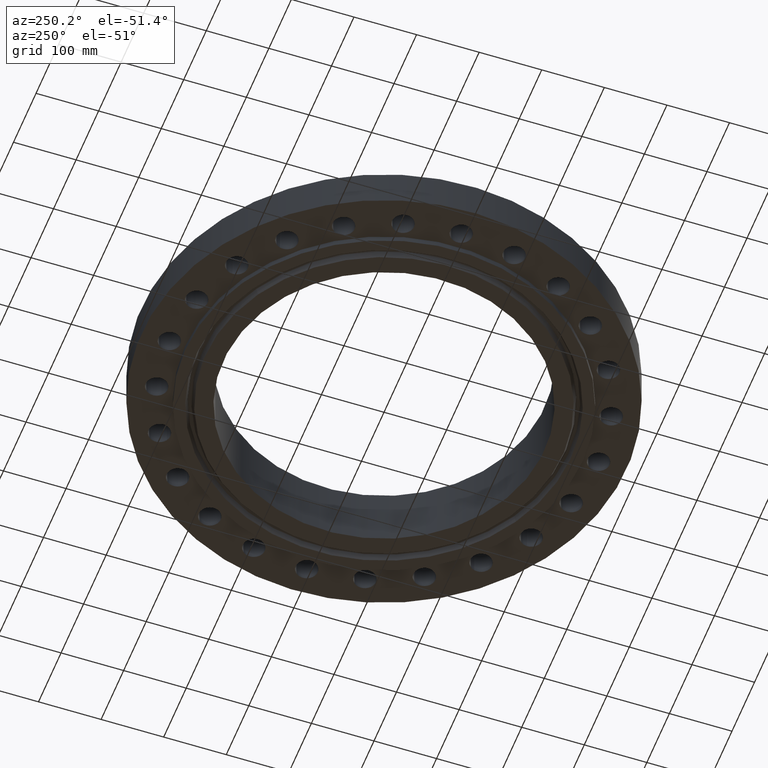
[diagram: clean part render]
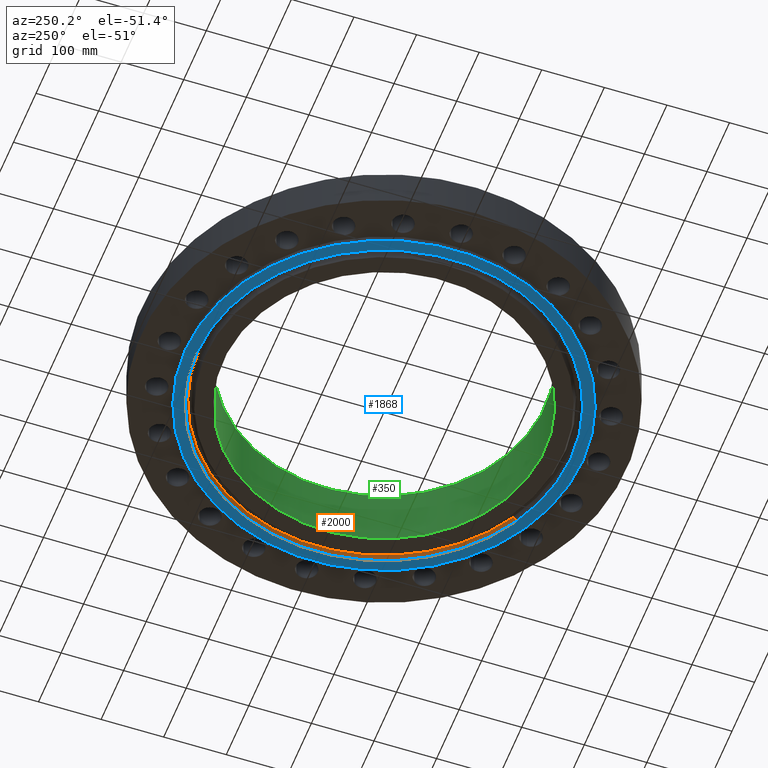
[diagram: same view with three faces highlighted in distinct colors, each labeled with its STEP entity id]
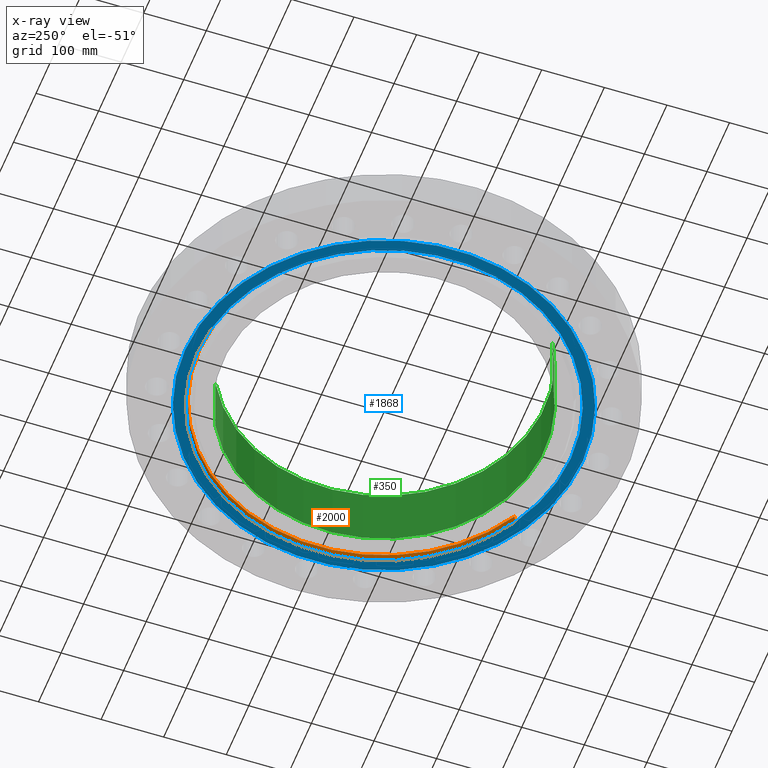
[diagram: x-ray of the same camera — body ghosted, the three highlighted faces saturated]
A machine part, auxiliary view with three faces highlighted in distinct colors.
The next image is the same camera in x-ray (body ghosted, the three faces saturated) — at least one of them is partly hidden behind the body in this view.
Their STEP definitions:

[orange] entity #2000 — the highlighted conical surface has half-angle 23 deg.
#1861=AXIS2_PLACEMENT_3D('Circle Axis2P3D',#1859,#1860,$) ;
#1935=AXIS2_PLACEMENT_3D('Cone Axis2P3D',#1932,#1933,#1934) ;
#1956=AXIS2_PLACEMENT_3D('Circle Axis2P3D',#1954,#1955,$) ;
#1854=CARTESIAN_POINT('Vertex',(5.6407530883,-10.3253292693,-0.375000000001)) ;
#1856=CARTESIAN_POINT('Vertex',(-5.6407530883,10.3253292693,-0.375000000001)) ;
#1859=CARTESIAN_POINT('Axis2P3D Location',(-2.79741234551E-016,-2.23792987641E-015,-0.375000000001)) ;
#1901=CARTESIAN_POINT('Vertex',(-5.57218835637,10.1998223694,-0.0380793044696)) ;
#1903=CARTESIAN_POINT('Vertex',(5.57218835637,-10.1998223694,-0.0380793044696)) ;
#1932=CARTESIAN_POINT('Axis2P3D Location',(0.,0.,-0.0380793044696)) ;
#1937=CARTESIAN_POINT('Line Origine',(-5.60647072234,10.2625758194,-0.206539652236)) ;
#1942=CARTESIAN_POINT('Line Origine',(5.60647072234,-10.2625758194,-0.206539652236)) ;
#1954=CARTESIAN_POINT('Axis2P3D Location',(0.,0.,-0.0380793044696)) ;
#1860=DIRECTION('Axis2P3D Direction',(0.,0.,-0.0393700787402)) ;
#1933=DIRECTION('Axis2P3D Direction',(-0.,-0.,-0.0393700787402)) ;
#1934=DIRECTION('Axis2P3D XDirection',(-0.0188750212049,0.0345504945626,0.)) ;
#1938=DIRECTION('Vector Direction',(-0.00737505833565,0.0134999537303,-0.0362403485611)) ;
#1943=DIRECTION('Vector Direction',(0.00737505833565,-0.0134999537303,-0.0362403485611)) ;
#1955=DIRECTION('Axis2P3D Direction',(0.,0.,0.0393700787402)) ;
#1939=VECTOR('Line Direction',#1938,0.0393700787402) ;
#1944=VECTOR('Line Direction',#1943,0.0393700787402) ;
#1995=ORIENTED_EDGE('',*,*,#1863,.T.) ;
#1996=ORIENTED_EDGE('',*,*,#1946,.T.) ;
#1997=ORIENTED_EDGE('',*,*,#1958,.T.) ;
#1998=ORIENTED_EDGE('',*,*,#1941,.F.) ;
#2000=ADVANCED_FACE('PartBody',(#1999),#1936,.F.) ;
#1862=CIRCLE('generated circle',#1861,11.76565) ;
#1957=CIRCLE('generated circle',#1956,11.6226356497) ;
#1936=CONICAL_SURFACE('Cone',#1935,11.6226356497,0.401425727959) ;
#1863=EDGE_CURVE('',#1857,#1855,#1862,.T.) ;
#1941=EDGE_CURVE('',#1857,#1902,#1940,.F.) ;
#1946=EDGE_CURVE('',#1855,#1904,#1945,.F.) ;
#1958=EDGE_CURVE('',#1904,#1902,#1957,.T.) ;
#1994=EDGE_LOOP('',(#1995,#1996,#1997,#1998)) ;
#1999=FACE_OUTER_BOUND('',#1994,.T.) ;
#1940=LINE('Line',#1937,#1939) ;
#1945=LINE('Line',#1942,#1944) ;
#1855=VERTEX_POINT('',#1854) ;
#1857=VERTEX_POINT('',#1856) ;
#1902=VERTEX_POINT('',#1901) ;
#1904=VERTEX_POINT('',#1903) ;

[blue] entity #1868 — the highlighted planar face has unit normal (0, 0, -1).
#370=AXIS2_PLACEMENT_3D('Circle Axis2P3D',#368,#369,$) ;
#405=AXIS2_PLACEMENT_3D('Circle Axis2P3D',#403,#404,$) ;
#1844=AXIS2_PLACEMENT_3D('Plane Axis2P3D',#1841,#1842,#1843) ;
#1852=AXIS2_PLACEMENT_3D('Circle Axis2P3D',#1850,#1851,$) ;
#1861=AXIS2_PLACEMENT_3D('Circle Axis2P3D',#1859,#1860,$) ;
#368=CARTESIAN_POINT('Axis2P3D Location',(0.,0.,-0.375000000001)) ;
#372=CARTESIAN_POINT('Vertex',(-5.99281923258,-10.9697820237,-0.375000000001)) ;
#374=CARTESIAN_POINT('Vertex',(5.99281923258,10.9697820237,-0.375000000001)) ;
#403=CARTESIAN_POINT('Axis2P3D Location',(0.,0.,-0.375000000001)) ;
#1841=CARTESIAN_POINT('Axis2P3D Location',(0.,10.1,-0.375000000001)) ;
#1850=CARTESIAN_POINT('Axis2P3D Location',(-1.39870617276E-015,-2.23792987641E-015,-0.375000000001)) ;
#1854=CARTESIAN_POINT('Vertex',(5.6407530883,-10.3253292693,-0.375000000001)) ;
#1856=CARTESIAN_POINT('Vertex',(-5.6407530883,10.3253292693,-0.375000000001)) ;
#1859=CARTESIAN_POINT('Axis2P3D Location',(-2.79741234551E-016,-2.23792987641E-015,-0.375000000001)) ;
#369=DIRECTION('Axis2P3D Direction',(0.,0.,-0.0393700787402)) ;
#404=DIRECTION('Axis2P3D Direction',(0.,0.,-0.0393700787402)) ;
#1842=DIRECTION('Axis2P3D Direction',(0.,0.,-0.0393700787402)) ;
#1843=DIRECTION('Axis2P3D XDirection',(0.0393700787402,0.,0.)) ;
#1851=DIRECTION('Axis2P3D Direction',(0.,0.,-0.0393700787402)) ;
#1860=DIRECTION('Axis2P3D Direction',(0.,0.,-0.0393700787402)) ;
#1847=ORIENTED_EDGE('',*,*,#376,.T.) ;
#1848=ORIENTED_EDGE('',*,*,#407,.T.) ;
#1865=ORIENTED_EDGE('',*,*,#1858,.F.) ;
#1866=ORIENTED_EDGE('',*,*,#1863,.F.) ;
#1867=FACE_BOUND('',#1864,.T.) ;
#1868=ADVANCED_FACE('PartBody',(#1849,#1867),#1845,.T.) ;
#371=CIRCLE('generated circle',#370,12.5000000001) ;
#406=CIRCLE('generated circle',#405,12.5000000001) ;
#1853=CIRCLE('generated circle',#1852,11.76565) ;
#1862=CIRCLE('generated circle',#1861,11.76565) ;
#376=EDGE_CURVE('',#373,#375,#371,.T.) ;
#407=EDGE_CURVE('',#375,#373,#406,.T.) ;
#1858=EDGE_CURVE('',#1855,#1857,#1853,.T.) ;
#1863=EDGE_CURVE('',#1857,#1855,#1862,.T.) ;
#1846=EDGE_LOOP('',(#1847,#1848)) ;
#1864=EDGE_LOOP('',(#1865,#1866)) ;
#1849=FACE_OUTER_BOUND('',#1846,.T.) ;
#1845=PLANE('',#1844) ;
#373=VERTEX_POINT('',#372) ;
#375=VERTEX_POINT('',#374) ;
#1855=VERTEX_POINT('',#1854) ;
#1857=VERTEX_POINT('',#1856) ;

[green] entity #350 — the highlighted cylindrical surface (partial cylindrical patch) has radius 256.54 mm, axis along (0, 0, -1).
#312=AXIS2_PLACEMENT_3D('Circle Axis2P3D',#310,#311,$) ;
#323=AXIS2_PLACEMENT_3D('Cylinder Axis2P3D',#320,#321,#322) ;
#334=AXIS2_PLACEMENT_3D('Circle Axis2P3D',#332,#333,$) ;
#305=CARTESIAN_POINT('Vertex',(-4.84219793992,-8.86358387513,3.69000000001)) ;
#307=CARTESIAN_POINT('Vertex',(4.84219793992,8.86358387513,3.69000000001)) ;
#310=CARTESIAN_POINT('Axis2P3D Location',(0.,0.,3.69000000001)) ;
#320=CARTESIAN_POINT('Axis2P3D Location',(0.,0.,1.65750000001)) ;
#325=CARTESIAN_POINT('Line Origine',(4.84219793992,8.86358387513,1.65750000001)) ;
#329=CARTESIAN_POINT('Vertex',(4.84219793992,8.86358387513,-0.375000000002)) ;
#332=CARTESIAN_POINT('Axis2P3D Location',(0.,0.,-0.375000000002)) ;
#336=CARTESIAN_POINT('Vertex',(-4.84219793992,-8.86358387513,-0.375000000002)) ;
#339=CARTESIAN_POINT('Line Origine',(-4.84219793992,-8.86358387513,1.65750000001)) ;
#311=DIRECTION('Axis2P3D Direction',(0.,0.,-0.0393700787402)) ;
#321=DIRECTION('Axis2P3D Direction',(0.,0.,-0.0393700787402)) ;
#322=DIRECTION('Axis2P3D XDirection',(-0.0188750212049,-0.0345504945626,0.)) ;
#326=DIRECTION('Vector Direction',(0.,0.,-0.0393700787402)) ;
#333=DIRECTION('Axis2P3D Direction',(0.,0.,-0.0393700787402)) ;
#340=DIRECTION('Vector Direction',(0.,0.,-0.0393700787402)) ;
#327=VECTOR('Line Direction',#326,0.0393700787402) ;
#341=VECTOR('Line Direction',#340,0.0393700787402) ;
#345=ORIENTED_EDGE('',*,*,#314,.F.) ;
#346=ORIENTED_EDGE('',*,*,#331,.T.) ;
#347=ORIENTED_EDGE('',*,*,#338,.T.) ;
#348=ORIENTED_EDGE('',*,*,#343,.F.) ;
#350=ADVANCED_FACE('PartBody',(#349),#324,.F.) ;
#313=CIRCLE('generated circle',#312,10.1) ;
#335=CIRCLE('generated circle',#334,10.1) ;
#324=CYLINDRICAL_SURFACE('generated cylinder',#323,10.1) ;
#314=EDGE_CURVE('',#308,#306,#313,.T.) ;
#331=EDGE_CURVE('',#308,#330,#328,.T.) ;
#338=EDGE_CURVE('',#330,#337,#335,.T.) ;
#343=EDGE_CURVE('',#306,#337,#342,.T.) ;
#344=EDGE_LOOP('',(#345,#346,#347,#348)) ;
#349=FACE_OUTER_BOUND('',#344,.T.) ;
#328=LINE('Line',#325,#327) ;
#342=LINE('Line',#339,#341) ;
#306=VERTEX_POINT('',#305) ;
#308=VERTEX_POINT('',#307) ;
#330=VERTEX_POINT('',#329) ;
#337=VERTEX_POINT('',#336) ;